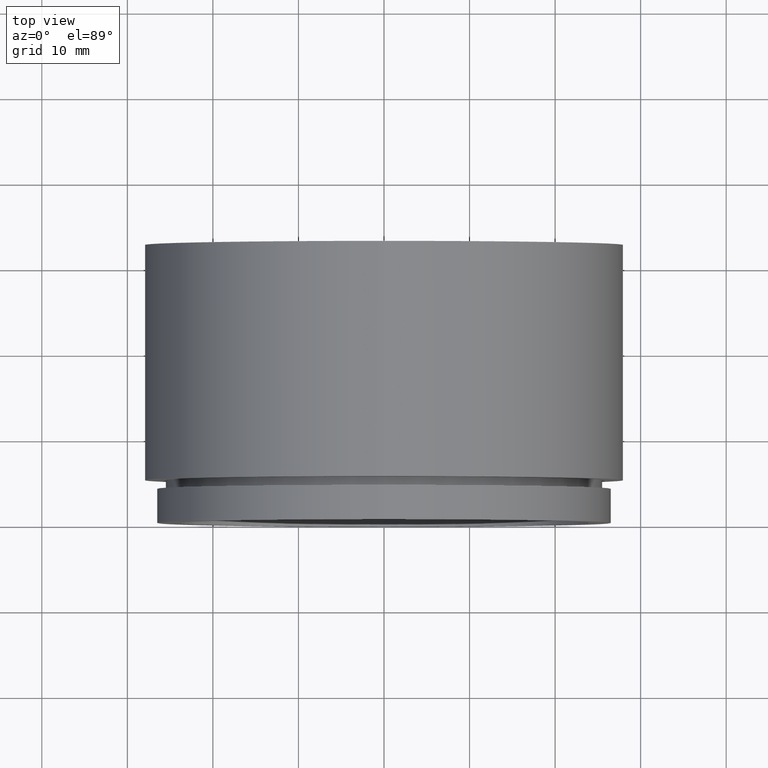
[diagram: clean part render]
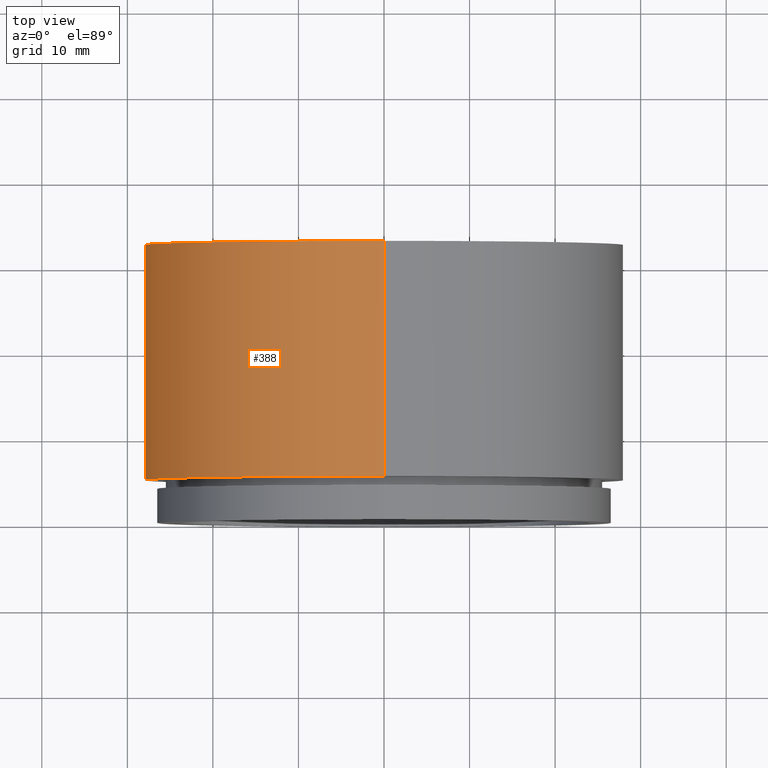
[diagram: same view with one face highlighted and labeled with its STEP entity id]
A machine part, top view. The second image highlights one B-rep face of the part: STEP entity #388.
In plain terms, the highlighted cylindrical surface (partial cylindrical patch) has radius 28 mm, axis along (-0, -1, -0).
Its self-contained STEP definition (entity closure, byte-faithful):
#17 = VERTEX_POINT ( 'NONE', #600 ) ;
#23 = DIRECTION ( 'NONE',  ( 0.0000000000000000000, 0.0000000000000000000, -1.000000000000000000 ) ) ;
#26 = DIRECTION ( 'NONE',  ( -0.0000000000000000000, -1.000000000000000000, -0.0000000000000000000 ) ) ;
#34 = AXIS2_PLACEMENT_3D ( 'NONE', #241, #26, #23 ) ;
#39 = EDGE_CURVE ( 'NONE', #644, #298, #267, .T. ) ;
#51 = CIRCLE ( 'NONE', #34, 28.00000000000000000 ) ;
#56 = DIRECTION ( 'NONE',  ( 0.0000000000000000000, 0.0000000000000000000, -1.000000000000000000 ) ) ;
#58 = DIRECTION ( 'NONE',  ( -0.0000000000000000000, -1.000000000000000000, -0.0000000000000000000 ) ) ;
#63 = FACE_OUTER_BOUND ( 'NONE', #635, .T. ) ;
#72 = CARTESIAN_POINT ( 'NONE',  ( 0.0000000000000000000, 5.000000000000000000, -28.00000000000000000 ) ) ;
#86 = ORIENTED_EDGE ( 'NONE', *, *, #140, .F. ) ;
#120 = ORIENTED_EDGE ( 'NONE', *, *, #39, .F. ) ;
#121 = DIRECTION ( 'NONE',  ( 0.0000000000000000000, 0.0000000000000000000, -1.000000000000000000 ) ) ;
#140 = EDGE_CURVE ( 'NONE', #298, #426, #583, .T. ) ;
#147 = EDGE_CURVE ( 'NONE', #17, #426, #235, .T. ) ;
#150 = AXIS2_PLACEMENT_3D ( 'NONE', #584, #413, #121 ) ;
#235 = LINE ( 'NONE', #615, #573 ) ;
#238 = CARTESIAN_POINT ( 'NONE',  ( 3.429011037612589300E-015, 0.0000000000000000000, 28.00000000000000000 ) ) ;
#241 = CARTESIAN_POINT ( 'NONE',  ( 0.0000000000000000000, 32.50000000000000000, 0.0000000000000000000 ) ) ;
#267 = LINE ( 'NONE', #238, #374 ) ;
#298 = VERTEX_POINT ( 'NONE', #622 ) ;
#340 = DIRECTION ( 'NONE',  ( -0.0000000000000000000, -1.000000000000000000, -0.0000000000000000000 ) ) ;
#358 = CARTESIAN_POINT ( 'NONE',  ( 3.429011037612589300E-015, 32.50000000000000000, 28.00000000000000000 ) ) ;
#374 = VECTOR ( 'NONE', #638, 1000.000000000000000 ) ;
#388 = ADVANCED_FACE ( 'NONE', ( #63 ), #567, .T. ) ;
#413 = DIRECTION ( 'NONE',  ( -0.0000000000000000000, -1.000000000000000000, -0.0000000000000000000 ) ) ;
#426 = VERTEX_POINT ( 'NONE', #72 ) ;
#478 = AXIS2_PLACEMENT_3D ( 'NONE', #529, #58, #56 ) ;
#499 = EDGE_CURVE ( 'NONE', #644, #17, #51, .T. ) ;
#529 = CARTESIAN_POINT ( 'NONE',  ( 0.0000000000000000000, 0.0000000000000000000, 0.0000000000000000000 ) ) ;
#555 = ORIENTED_EDGE ( 'NONE', *, *, #147, .T. ) ;
#567 = CYLINDRICAL_SURFACE ( 'NONE', #478, 28.00000000000000000 ) ;
#573 = VECTOR ( 'NONE', #340, 1000.000000000000000 ) ;
#583 = CIRCLE ( 'NONE', #150, 28.00000000000000000 ) ;
#584 = CARTESIAN_POINT ( 'NONE',  ( 0.0000000000000000000, 5.000000000000000000, 0.0000000000000000000 ) ) ;
#591 = ORIENTED_EDGE ( 'NONE', *, *, #499, .T. ) ;
#600 = CARTESIAN_POINT ( 'NONE',  ( 0.0000000000000000000, 32.50000000000000000, -28.00000000000000000 ) ) ;
#615 = CARTESIAN_POINT ( 'NONE',  ( 0.0000000000000000000, 0.0000000000000000000, -28.00000000000000000 ) ) ;
#622 = CARTESIAN_POINT ( 'NONE',  ( 3.429011037612589300E-015, 5.000000000000000000, 28.00000000000000000 ) ) ;
#635 = EDGE_LOOP ( 'NONE', ( #120, #591, #555, #86 ) ) ;
#638 = DIRECTION ( 'NONE',  ( -0.0000000000000000000, -1.000000000000000000, -0.0000000000000000000 ) ) ;
#644 = VERTEX_POINT ( 'NONE', #358 ) ;